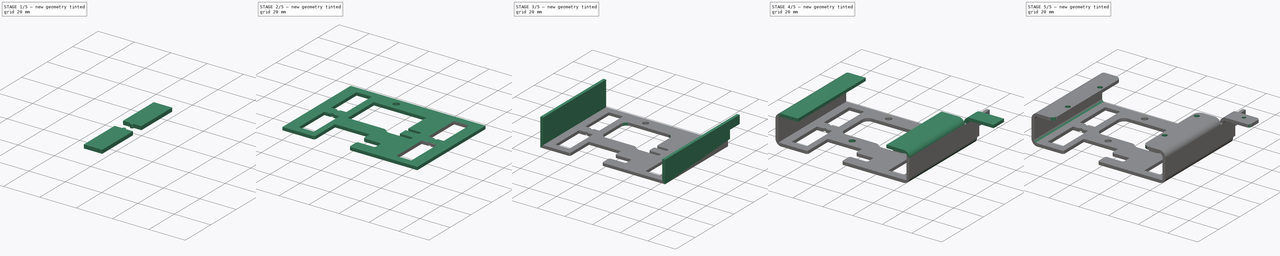
[diagram: build sequence overview — one tinted view per stage of 5, left to right]
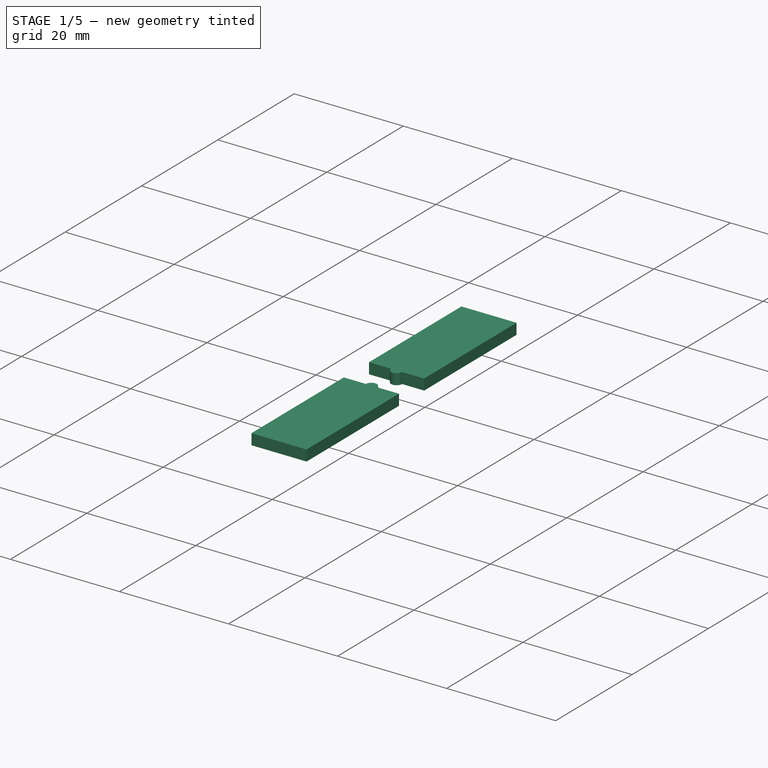
[diagram: stage 1 of 5 — iso view after this stage's code; geometry added in this stage tinted green]
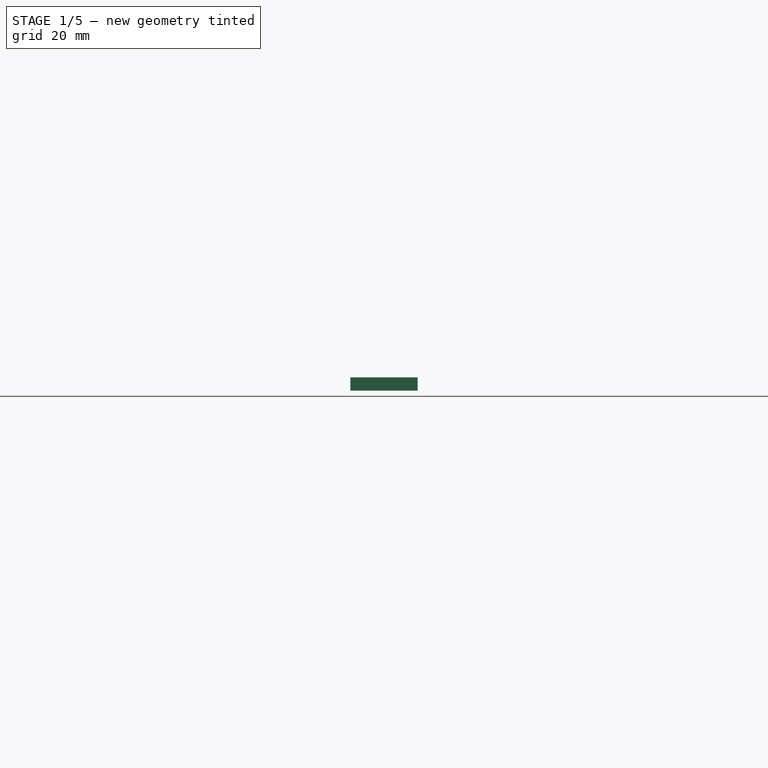
[diagram: stage 1 of 5 — front view after this stage's code; geometry added in this stage tinted green]
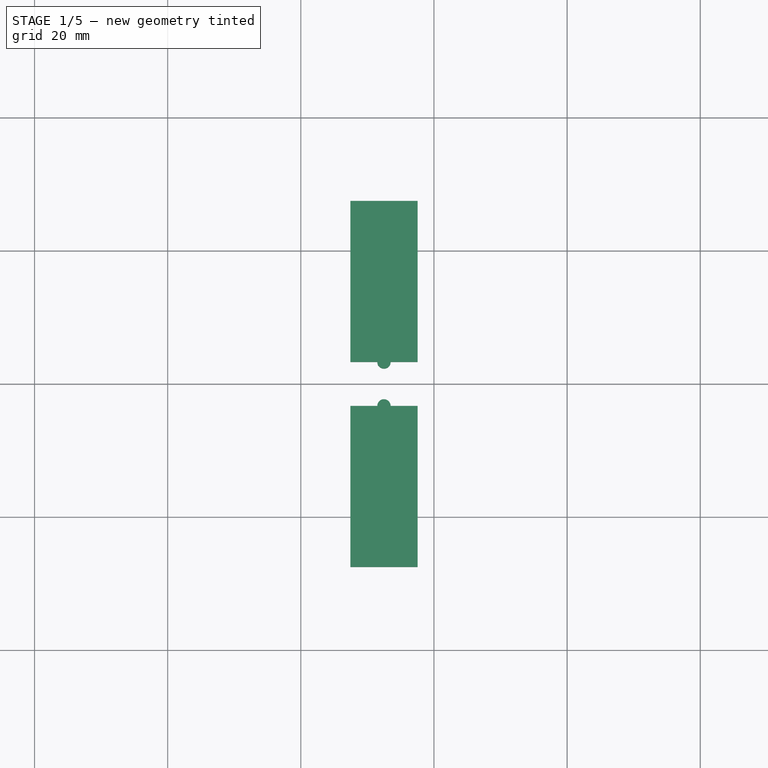
[diagram: stage 1 of 5 — top view after this stage's code; geometry added in this stage tinted green]
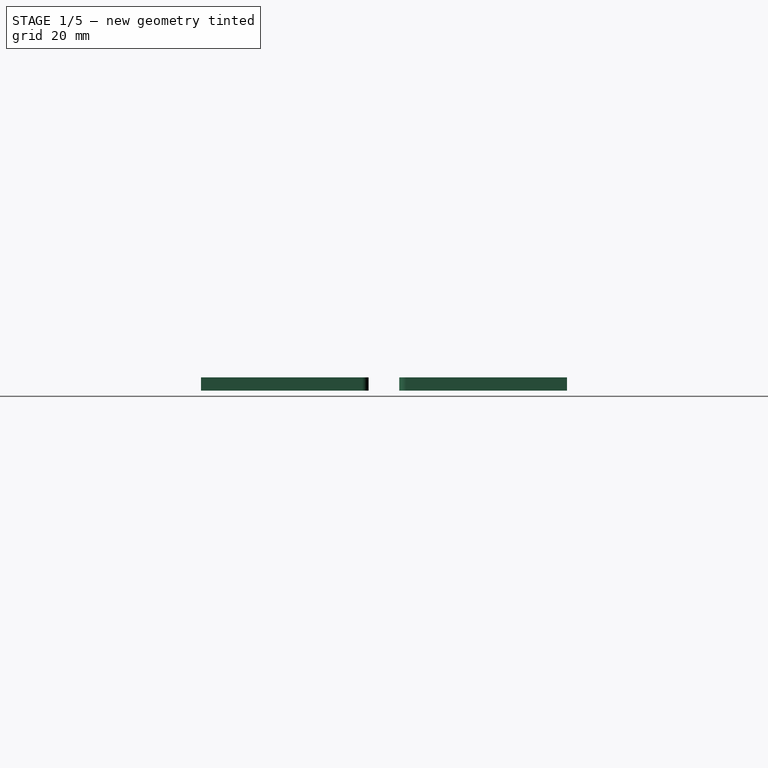
[diagram: stage 1 of 5 — right view after this stage's code; geometry added in this stage tinted green]
FCSTD DOCUMENT  (FreeCAD 0.14R3310 (Git))
Label: 78. PLACA EXTRUDERS
License: CC-BY 3.0
LicenseURL: http://creativecommons.org/licenses/by/3.0/
objects: Sketcher::SketchObject×10, PartDesign::Pad×7, PartDesign::Fillet×7, PartDesign::Pocket×3, Part::Mirroring×2, Part::MultiFuse×2, Part::Cut×1
note: 42 computed .brp shape members not serialized (recipe doc carries the construction recipe); baked Part::Feature solids carry a one-line shape summary decoded from their .brp

FEATURE [Sketcher::SketchObject] Sketch001
  sketch-geometry (7):
    g0: LineSegment StartX=-27.44 StartY=-27.5 StartZ=0 EndX=-37.55 EndY=-27.5 EndZ=0
    g1: LineSegment StartX=-37.55 StartY=-27.5 StartZ=0 EndX=-37.55 EndY=-3.3 EndZ=0
    g2: LineSegment [constr] StartX=-37.55 StartY=-3.3 StartZ=0 EndX=-27.44 EndY=-3.3 EndZ=0
    g3: LineSegment StartX=-27.44 StartY=-3.3 StartZ=0 EndX=-27.44 EndY=-27.5 EndZ=0
    g4: ArcOfCircle CenterX=-32.49 CenterY=-3.3 CenterZ=0 NormalX=0 NormalY=0 NormalZ=1 Radius=1 StartAngle=0 EndAngle=3.14159
    g5: LineSegment StartX=-33.49 StartY=-3.3 StartZ=0 EndX=-37.55 EndY=-3.3 EndZ=0
    g6: LineSegment StartX=-31.49 StartY=-3.3 StartZ=0 EndX=-27.44 EndY=-3.3 EndZ=0
  constraints (21):
    c: Coincident(g0,g1)
    c: Coincident(g1,g2)
    c: Coincident(g2,g3)
    c: Coincident(g3,g0)
    c: Horizontal(g0)
    c: Horizontal(g2)
    c: Vertical(g1)
    c: Vertical(g3)
    c: Distance(g0) = 10.11
    c: Distance(g1) = 24.2
    c: DistanceY(g-1,g2) = -3.3
    c: DistanceX(g-2,g2) = -27.44
    c: PointOnObject(g4,g2)
    c: PointOnObject(g4,g2)
    c: PointOnObject(g4,g2)
    c: Radius(g4) = 1
    c: Coincident(g5,g4)
    c: Coincident(g5,g1)
    c: Distance(g4,g1) = 4.06
    c: Coincident(g6,g4)
    c: Coincident(g6,g2)
FEATURE [PartDesign::Pad] Pad001
  Length = 2
  Length2 = 100
  Sketch = -> Sketch001
  Type = 0
FEATURE [Part::Mirroring] Part__Mirroring  label="Pad001 (Mirror #1)"
  Base = (0,0,0)
  Normal = (0,1,0)
  Source = -> Pad001
FEATURE [Part::MultiFuse] Fusion
  Shapes = -> [Pad001,Part__Mirroring]
FEATURE [Part::Mirroring] Part__Mirroring001  label="Fusion (Mirror #2)"
  Base = (0,0,0)
  Normal = (1,0,0)
  Source = -> Fusion
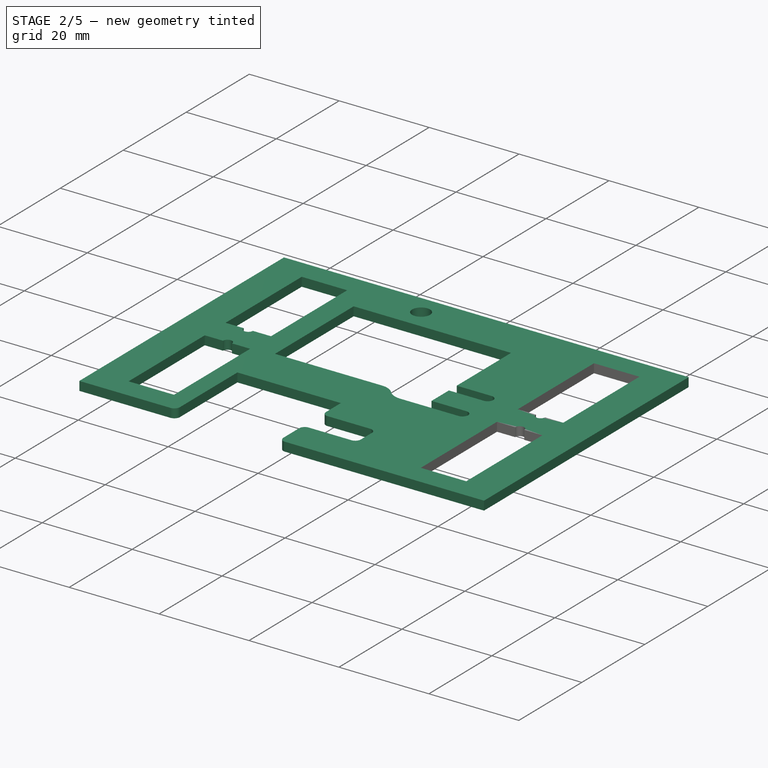
[diagram: stage 2 of 5 — iso view after this stage's code; geometry added in this stage tinted green]
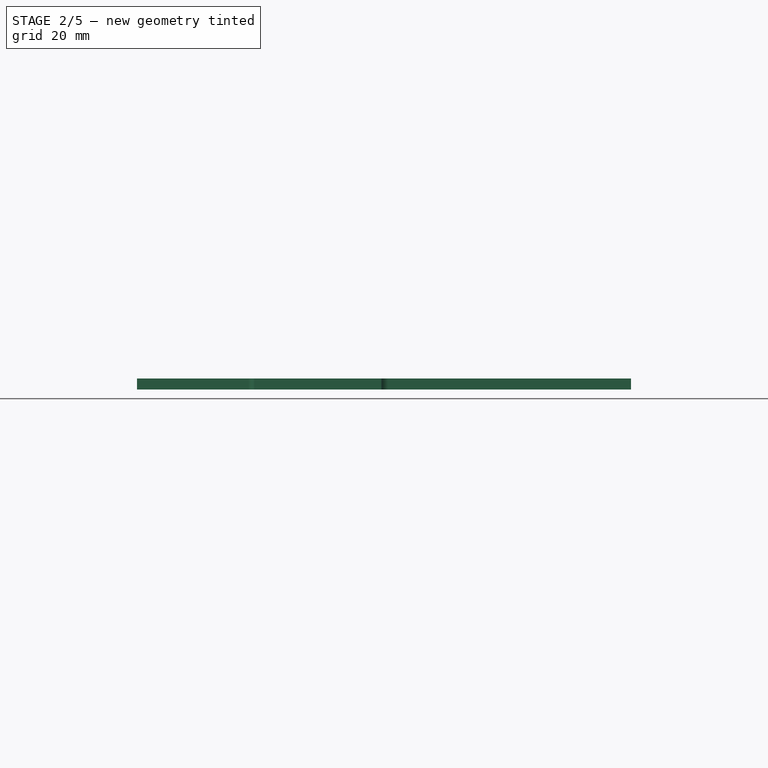
[diagram: stage 2 of 5 — front view after this stage's code; geometry added in this stage tinted green]
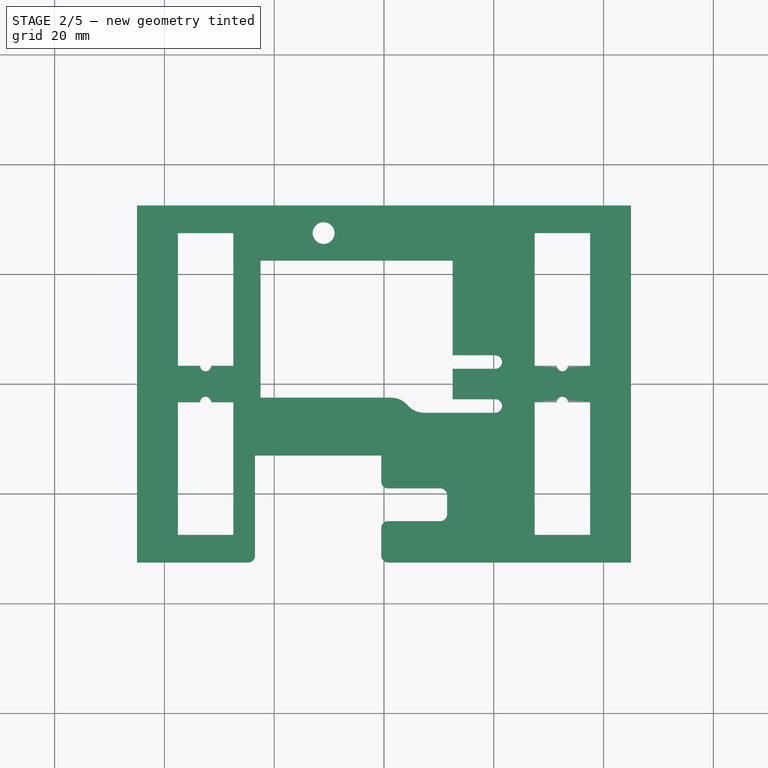
[diagram: stage 2 of 5 — top view after this stage's code; geometry added in this stage tinted green]
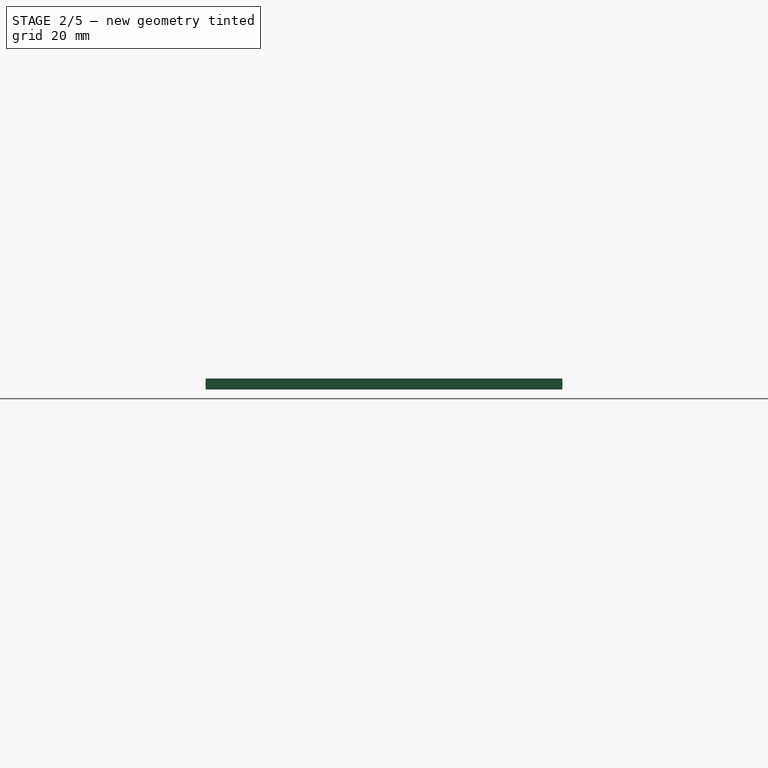
[diagram: stage 2 of 5 — right view after this stage's code; geometry added in this stage tinted green]
FEATURE [Sketcher::SketchObject] Sketch
  sketch-geometry (18):
    g0: LineSegment StartX=-45 StartY=32.5 StartZ=0 EndX=45 EndY=32.5 EndZ=0
    g1: LineSegment StartX=45 StartY=32.5 StartZ=0 EndX=45 EndY=-32.5 EndZ=0
    g2: LineSegment [constr] StartX=45 StartY=-32.5 StartZ=0 EndX=-45 EndY=-32.5 EndZ=0
    g3: LineSegment StartX=-45 StartY=-32.5 StartZ=0 EndX=-45 EndY=32.5 EndZ=0
    g4: LineSegment StartX=-23.5 StartY=-32.5 StartZ=0 EndX=-23.5 EndY=-13 EndZ=0
    g5: LineSegment StartX=-23.5 StartY=-13 StartZ=0 EndX=-0.5 EndY=-13 EndZ=0
    g6: LineSegment StartX=-0.5 StartY=-19 StartZ=0 EndX=11.5 EndY=-19 EndZ=0
    g7: LineSegment StartX=-0.5 StartY=-25 StartZ=0 EndX=11.5 EndY=-25 EndZ=0
    g8: LineSegment StartX=-0.5 StartY=-13 StartZ=0 EndX=-0.5 EndY=-19 EndZ=0
    g9: LineSegment StartX=11.5 StartY=-19 StartZ=0 EndX=11.5 EndY=-25 EndZ=0
    g10: LineSegment StartX=-0.5 StartY=-25 StartZ=0 EndX=-0.5 EndY=-32.5 EndZ=0
    g11: LineSegment StartX=-23.5 StartY=-32.5 StartZ=0 EndX=-45 EndY=-32.5 EndZ=0
    g12: LineSegment StartX=-0.5 StartY=-32.5 StartZ=0 EndX=45 EndY=-32.5 EndZ=0
    g13: Circle CenterX=-11 CenterY=27.5 CenterZ=0 NormalX=0 NormalY=0 NormalZ=1 Radius=2
    g14: LineSegment StartX=-22.5 StartY=22.5 StartZ=0 EndX=12.5 EndY=22.5 EndZ=0
    g15: LineSegment StartX=12.5 StartY=22.5 StartZ=0 EndX=12.5 EndY=-2.5 EndZ=0
    g16: LineSegment StartX=12.5 StartY=-2.5 StartZ=0 EndX=-22.5 EndY=-2.5 EndZ=0
    g17: LineSegment StartX=-22.5 StartY=-2.5 StartZ=0 EndX=-22.5 EndY=22.5 EndZ=0
  constraints (52):
    c: Coincident(g0,g1)
    c: Coincident(g1,g2)
    c: Coincident(g2,g3)
    c: Coincident(g3,g0)
    c: Horizontal(g0)
    c: Horizontal(g2)
    c: Vertical(g1)
    c: Vertical(g3)
    c: Symmetric(g1,g0,g-1)
    c: Distance(g3) = 65
    c: Distance(g0) = 90
    c: PointOnObject(g4,g2)
    c: Vertical(g4)
    c: Distance(g4,g3) = 21.5
    c: Distance(g4) = 19.5
    c: Coincident(g5,g4)
    c: Horizontal(g5)
    c: Distance(g5) = 23
    c: Horizontal(g6)
    c: Horizontal(g7)
    c: Coincident(g8,g5)
    c: Coincident(g8,g6)
    c: Vertical(g8)
    c: Distance(g8) = 6
    c: Distance(g6) = 12
    c: Coincident(g9,g6)
    c: Coincident(g9,g7)
    c: Vertical(g9)
    c: Distance(g9) = 6
    c: Coincident(g10,g7)
    c: PointOnObject(g10,g2)
    c: Vertical(g10)
    c: Distance(g10,g4) = 23
    c: Coincident(g11,g4)
    c: Coincident(g11,g2)
    c: Coincident(g12,g10)
    c: Coincident(g12,g1)
    c: Distance(g13,g0) = 5
    c: Distance(g13,g3) = 34
    c: Radius(g13) = 2
    c: Coincident(g14,g15)
    c: Coincident(g15,g16)
    c: Coincident(g16,g17)
    c: Coincident(g17,g14)
    c: Horizontal(g14)
    c: Horizontal(g16)
    c: Vertical(g15)
    c: Vertical(g17)
    c: Distance(g14) = 35
    c: Distance(g15) = 25
    c: Distance(g14,g0) = 10
    c: Distance(g14,g3) = 22.5
FEATURE [PartDesign::Pad] Pad
  Length = 2
  Length2 = 100
  Sketch = -> Sketch
  Type = 0
FEATURE [Part::MultiFuse] Fusion001
  Shapes = -> [Fusion,Part__Mirroring001]
FEATURE [Part::Cut] Cut
  Base = -> Pad
  Tool = -> Fusion001
FEATURE [Sketcher::SketchObject] Sketch002
  ExternalGeometry = -> [Cut]
  Placement = pos=(0,0,2) rot=(0,0,1;0rad)
  Support = -> Cut [Face5]
  sketch-geometry (10):
    g0: LineSegment StartX=12.5 StartY=5.25 StartZ=0 EndX=20.25 EndY=5.25 EndZ=0
    g1: LineSegment StartX=12.5 StartY=2.75 StartZ=0 EndX=20.25 EndY=2.75 EndZ=0
    g2: LineSegment StartX=12.5 StartY=-2.75 StartZ=0 EndX=20.25 EndY=-2.75 EndZ=0
    g3: ArcOfCircle CenterX=20.25 CenterY=-4 CenterZ=0 NormalX=0 NormalY=0 NormalZ=1 Radius=1.25 StartAngle=4.71239 EndAngle=7.85398
    g4: ArcOfCircle CenterX=20.25 CenterY=4 CenterZ=0 NormalX=0 NormalY=0 NormalZ=1 Radius=1.25 StartAngle=4.71239 EndAngle=7.85398
    g5: LineSegment StartX=12.5 StartY=2.75 StartZ=0 EndX=12.5 EndY=-2.75 EndZ=0
    g6: LineSegment StartX=20.25 StartY=-5.25 StartZ=0 EndX=7.3 EndY=-5.25 EndZ=0
    g7: ArcOfCircle CenterX=7.3 CenterY=-1.25 CenterZ=0 NormalX=0 NormalY=0 NormalZ=1 Radius=4 StartAngle=3.85743 EndAngle=4.71239
    g8: ArcOfCircle CenterX=1.26365 CenterY=-6.5 CenterZ=0 NormalX=0 NormalY=0 NormalZ=1 Radius=4 StartAngle=0.715838 EndAngle=1.5708
    g9: LineSegment StartX=1.26365 StartY=-2.5 StartZ=0 EndX=12.5 EndY=5.25 EndZ=0
  constraints (33):
    c: Horizontal(g0)
    c: Horizontal(g1)
    c: Horizontal(g2)
    c: Coincident(g3,g2)
    c: Coincident(g4,g0)
    c: Coincident(g4,g1)
    c: Tangent(g4,g0)
    c: Tangent(g4,g1)
    c: Tangent(g3,g2)
    c: Symmetric(g4,g3,g-1)
    c: Distance(g4,g3) = 8
    c: Equal(g4,g3)
    c: Radius(g4) = 1.25
    c: PointOnObject(g0,g-3)
    c: Equal(g1,g0)
    c: Equal(g0,g2)
    c: Coincident(g5,g1)
    c: Coincident(g5,g2)
    c: Coincident(g6,g3)
    c: Horizontal(g6)
    c: Distance(g6) = 12.95
    c: Tangent(g3,g6)
    c: Distance(g4,g-3) = 7.75
    c: Coincident(g7,g6)
    c: Tangent(g7,g6)
    c: Radius(g7) = 4
    c: Coincident(g8,g7)
    c: Equal(g8,g7)
    c: PointOnObject(g8,g-4)
    c: Tangent(g8,g-4)
    c: Tangent(g7,g8)
    c: Coincident(g9,g8)
    c: Coincident(g9,g0)
FEATURE [PartDesign::Pocket] Pocket
  Length = 5
  Sketch = -> Sketch002
  Type = 0
FEATURE [PartDesign::Fillet] Fillet
  Base = -> Pocket [Edge1,Edge111,Edge108,Edge113,Edge112,Edge110]
  Radius = 1.25
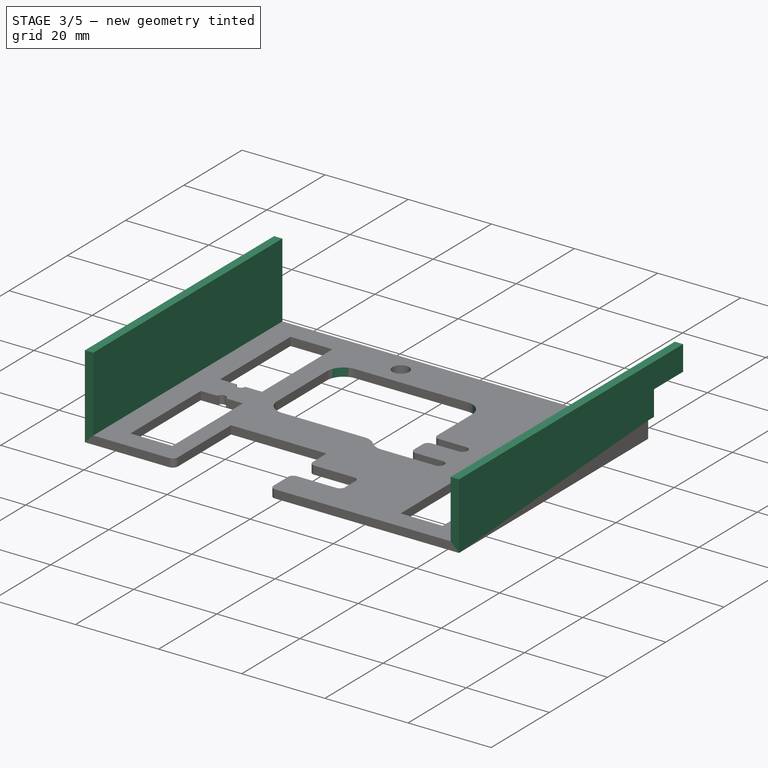
[diagram: stage 3 of 5 — iso view after this stage's code; geometry added in this stage tinted green]
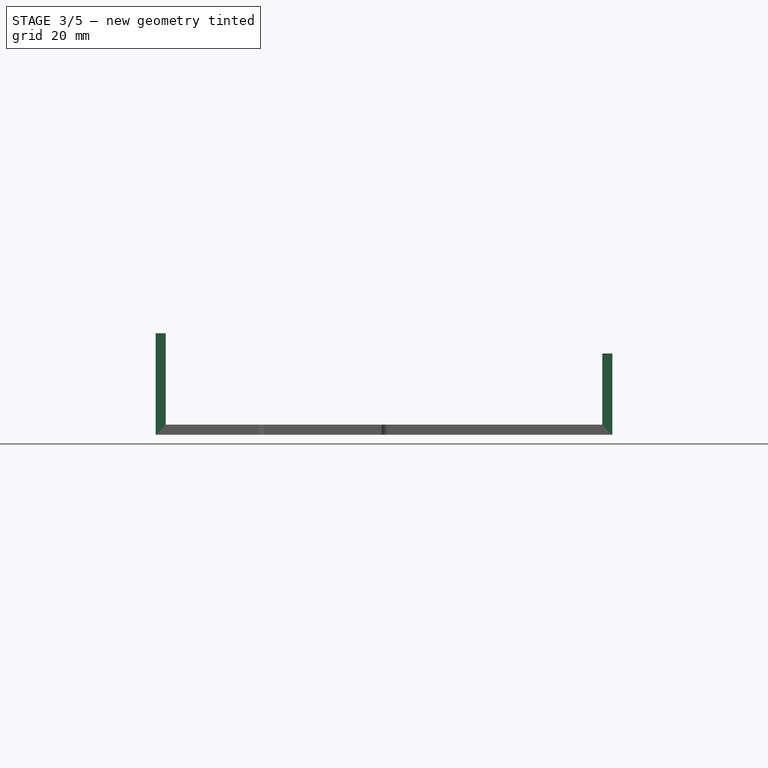
[diagram: stage 3 of 5 — front view after this stage's code; geometry added in this stage tinted green]
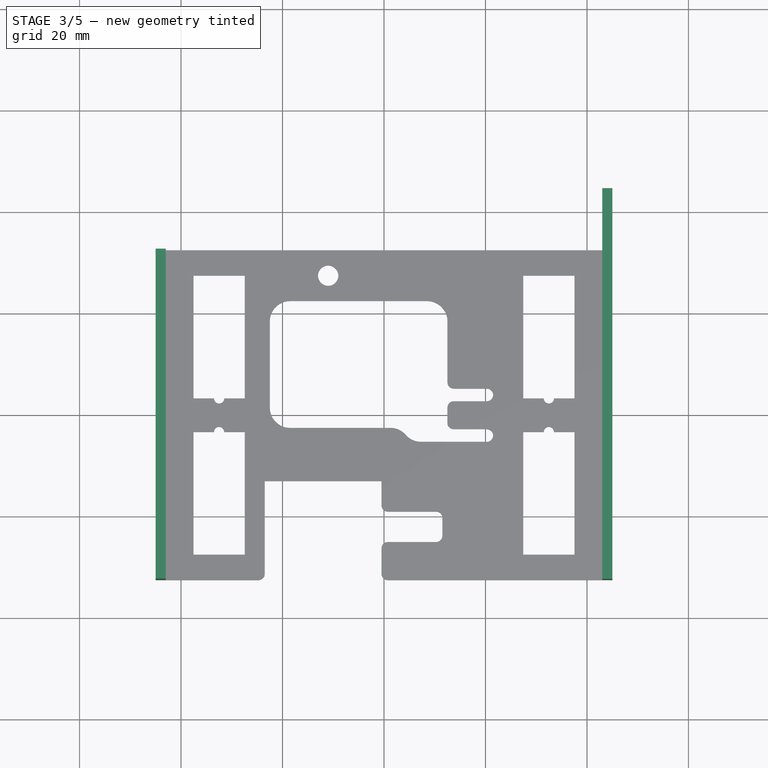
[diagram: stage 3 of 5 — top view after this stage's code; geometry added in this stage tinted green]
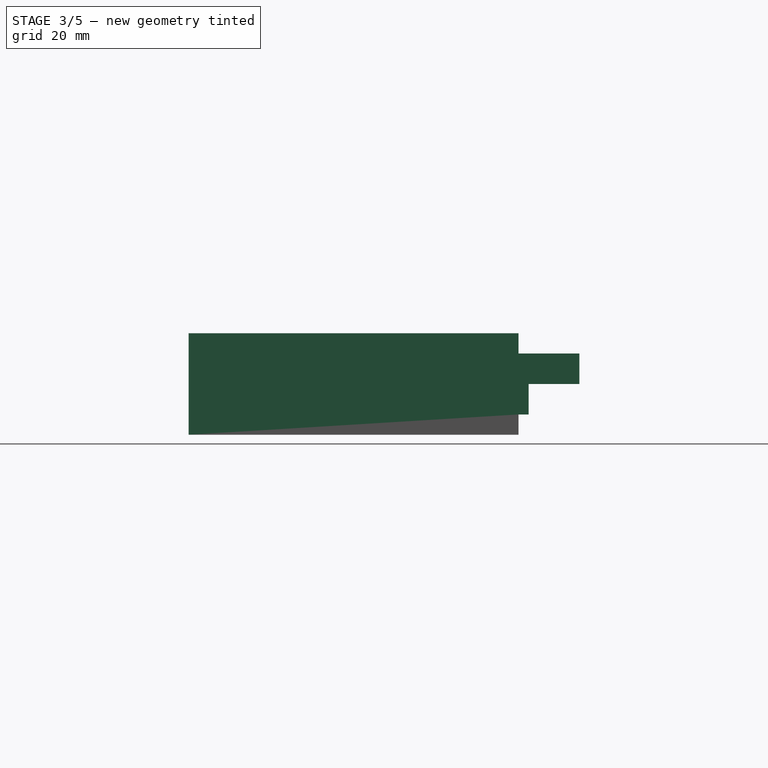
[diagram: stage 3 of 5 — right view after this stage's code; geometry added in this stage tinted green]
FEATURE [PartDesign::Fillet] Fillet001
  Base = -> Fillet [Edge132,Edge133,Edge144]
  Radius = 4
FEATURE [PartDesign::Fillet] Fillet002
  Base = -> Fillet001 [Edge78,Edge91,Edge89]
  Radius = 1.25
FEATURE [Sketcher::SketchObject] Sketch003
  ExternalGeometry = -> [Fillet002]
  Placement = pos=(45,0,0) rot=(0.57735,0.57735,0.57735;2.0944rad)
  Support = -> Fillet002 [Face27]
  sketch-geometry (10):
    g0: LineSegment StartX=-32.5 StartY=0 StartZ=0 EndX=32.5 EndY=0 EndZ=0
    g1: LineSegment [constr] StartX=32.5 StartY=0 StartZ=0 EndX=32.5 EndY=16 EndZ=0
    g2: LineSegment StartX=32.5 StartY=16 StartZ=0 EndX=-32.5 EndY=16 EndZ=0
    g3: LineSegment StartX=-32.5 StartY=16 StartZ=0 EndX=-32.5 EndY=0 EndZ=0
    g4: LineSegment StartX=32.5 StartY=16 StartZ=0 EndX=44.5 EndY=16 EndZ=0
    g5: LineSegment StartX=44.5 StartY=16 StartZ=0 EndX=44.5 EndY=10 EndZ=0
    g6: LineSegment StartX=44.5 StartY=10 StartZ=0 EndX=34.5 EndY=10 EndZ=0
    g7: LineSegment StartX=34.5 StartY=10 StartZ=0 EndX=34.5 EndY=4 EndZ=0
    g8: LineSegment StartX=34.5 StartY=4 StartZ=0 EndX=32.5 EndY=4 EndZ=0
    g9: LineSegment StartX=32.5 StartY=4 StartZ=0 EndX=32.5 EndY=0 EndZ=0
  constraints (28):
    c: Coincident(g0,g1)
    c: Coincident(g1,g2)
    c: Coincident(g2,g3)
    c: Coincident(g3,g0)
    c: Horizontal(g0)
    c: Horizontal(g2)
    c: Vertical(g1)
    c: Vertical(g3)
    c: Coincident(g0,g-4)
    c: Coincident(g0,g-3)
    c: Distance(g3) = 16
    c: Coincident(g4,g1)
    c: Horizontal(g4)
    c: Distance(g4) = 12
    c: Coincident(g5,g4)
    c: Vertical(g5)
    c: Distance(g5) = 6
    c: Coincident(g6,g5)
    c: Horizontal(g6)
    c: Distance(g6) = 10
    c: Coincident(g7,g6)
    c: Vertical(g7)
    c: Distance(g7) = 6
    c: PointOnObject(g8,g1)
    c: Horizontal(g8)
    c: Coincident(g8,g7)
    c: Coincident(g9,g8)
    c: Coincident(g9,g0)
FEATURE [PartDesign::Pad] Pad002
  Length = 2
  Length2 = 100
  Reversed = true
  Sketch = -> Sketch003
  Type = 0
FEATURE [Sketcher::SketchObject] Sketch004
  ExternalGeometry = -> [Pad002]
  Placement = pos=(-45,0,0) rot=(0.57735,-0.57735,-0.57735;2.0944rad)
  Support = -> Pad002 [Face9]
  sketch-geometry (4):
    g0: LineSegment StartX=-32.5 StartY=0 StartZ=0 EndX=32.5 EndY=0 EndZ=0
    g1: LineSegment StartX=32.5 StartY=0 StartZ=0 EndX=32.5 EndY=20 EndZ=0
    g2: LineSegment StartX=32.5 StartY=20 StartZ=0 EndX=-32.5 EndY=20 EndZ=0
    g3: LineSegment StartX=-32.5 StartY=20 StartZ=0 EndX=-32.5 EndY=0 EndZ=0
  constraints (11):
    c: Coincident(g0,g1)
    c: Coincident(g1,g2)
    c: Coincident(g2,g3)
    c: Coincident(g3,g0)
    c: Horizontal(g0)
    c: Horizontal(g2)
    c: Vertical(g1)
    c: Vertical(g3)
    c: Coincident(g0,g-4)
    c: Coincident(g0,g-3)
    c: Distance(g3) = 20
FEATURE [PartDesign::Pad] Pad003
  Length = 2
  Length2 = 100
  Reversed = true
  Sketch = -> Sketch004
  Type = 0
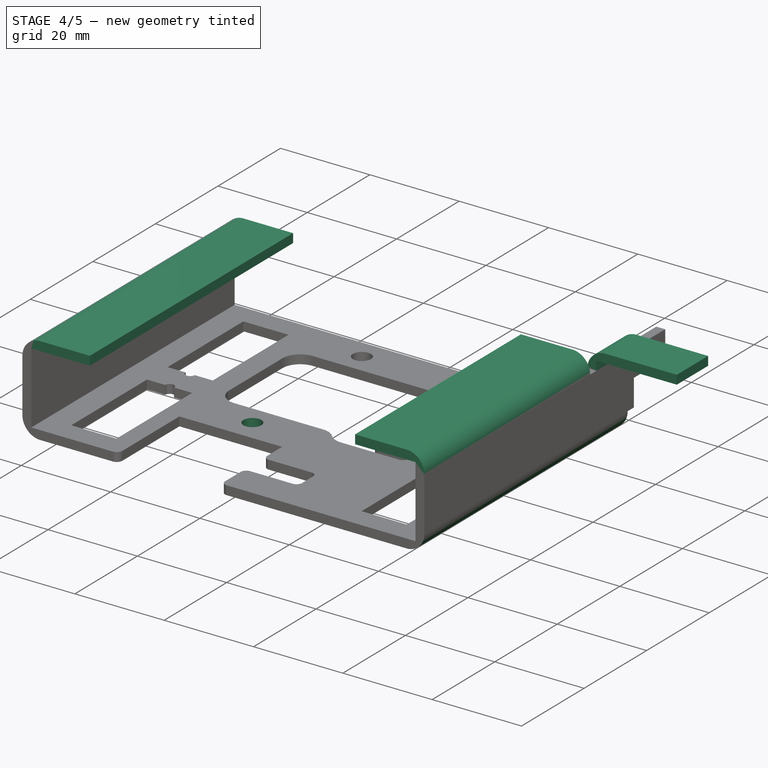
[diagram: stage 4 of 5 — iso view after this stage's code; geometry added in this stage tinted green]
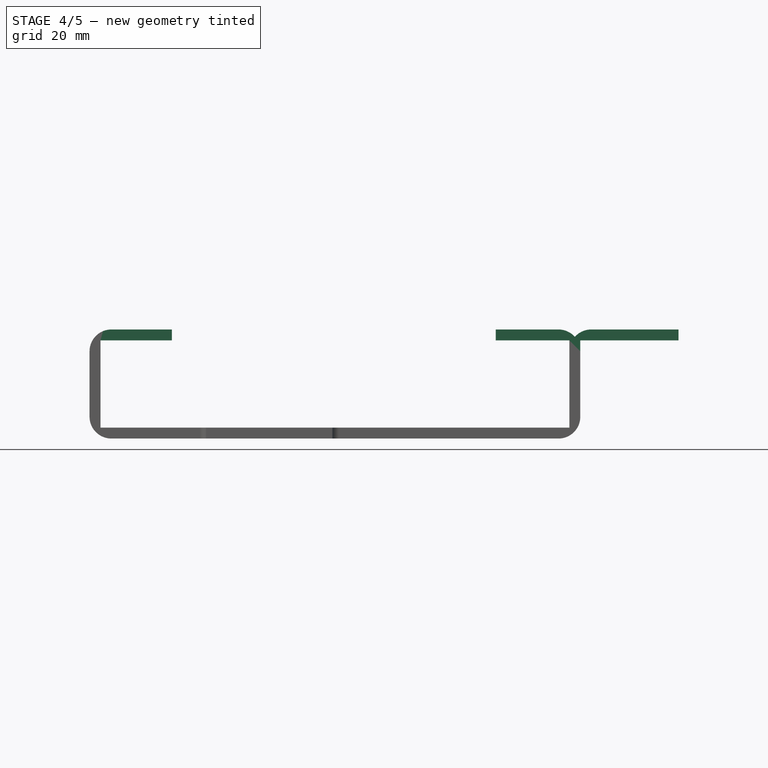
[diagram: stage 4 of 5 — front view after this stage's code; geometry added in this stage tinted green]
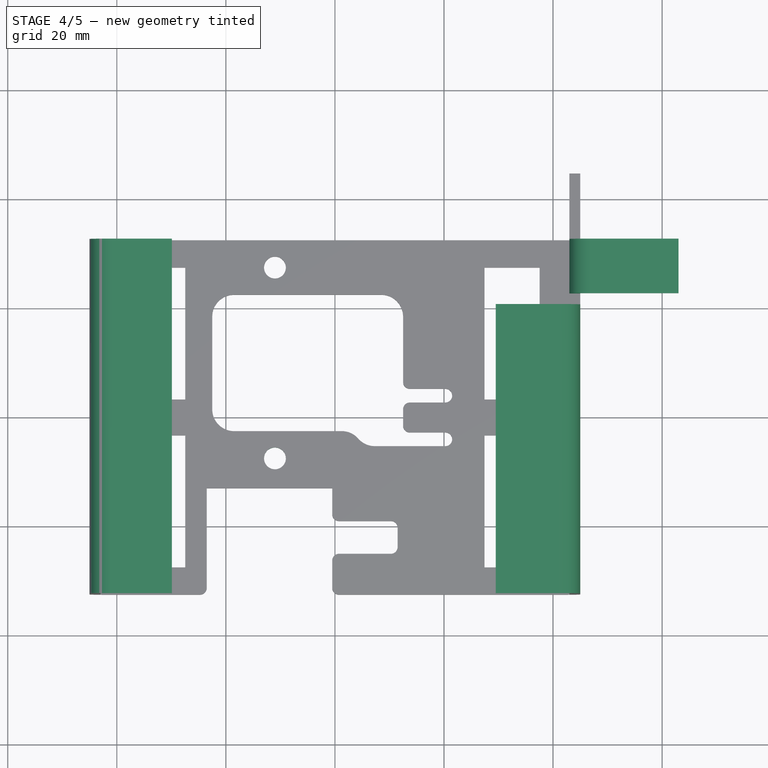
[diagram: stage 4 of 5 — top view after this stage's code; geometry added in this stage tinted green]
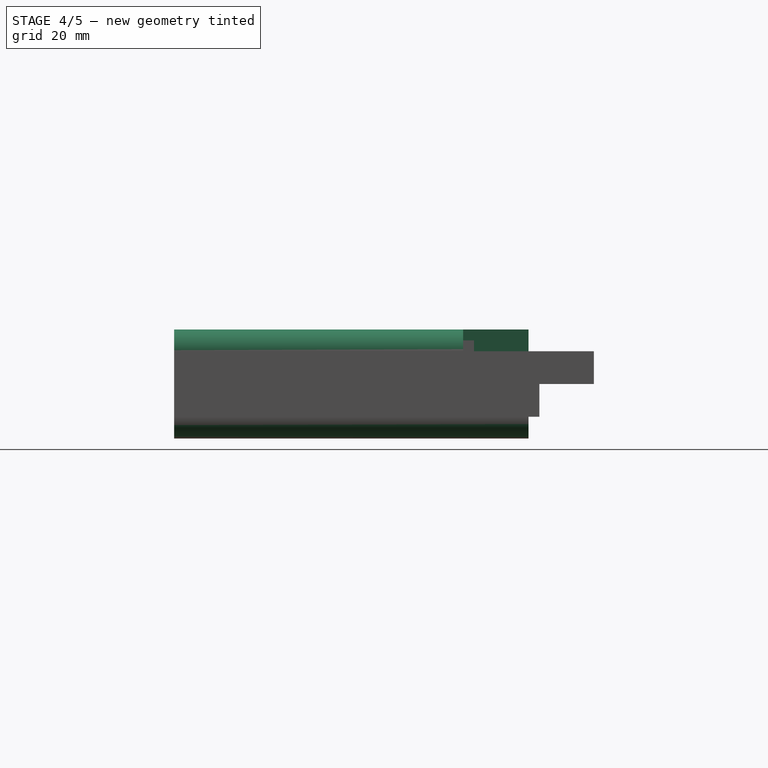
[diagram: stage 4 of 5 — right view after this stage's code; geometry added in this stage tinted green]
FEATURE [Sketcher::SketchObject] Sketch005
  ExternalGeometry = -> [Pad003]
  Placement = pos=(0,0,20) rot=(0,0,1;0rad)
  Support = -> Pad003 [Face68]
  sketch-geometry (4):
    g0: LineSegment StartX=-45 StartY=-32.5 StartZ=0 EndX=-29.9 EndY=-32.5 EndZ=0
    g1: LineSegment StartX=-29.9 StartY=-32.5 StartZ=0 EndX=-29.9 EndY=32.5 EndZ=0
    g2: LineSegment StartX=-29.9 StartY=32.5 StartZ=0 EndX=-45 EndY=32.5 EndZ=0
    g3: LineSegment StartX=-45 StartY=32.5 StartZ=0 EndX=-45 EndY=-32.5 EndZ=0
  constraints (11):
    c: Coincident(g0,g1)
    c: Coincident(g1,g2)
    c: Coincident(g2,g3)
    c: Coincident(g3,g0)
    c: Horizontal(g0)
    c: Horizontal(g2)
    c: Vertical(g1)
    c: Vertical(g3)
    c: Coincident(g0,g-4)
    c: Coincident(g2,g-3)
    c: Distance(g2) = 15.1
FEATURE [PartDesign::Pad] Pad004
  Length = 2
  Length2 = 100
  Reversed = true
  Sketch = -> Sketch005
  Type = 0
FEATURE [Sketcher::SketchObject] Sketch006
  ExternalGeometry = -> [Pad004]
  Placement = pos=(45,0,0) rot=(0.57735,0.57735,0.57735;2.0944rad)
  Support = -> Pad004 [Face3]
  sketch-geometry (8):
    g0: LineSegment StartX=-32.5 StartY=16 StartZ=0 EndX=20.5 EndY=16 EndZ=0
    g1: LineSegment StartX=20.5 StartY=16 StartZ=0 EndX=20.5 EndY=20 EndZ=0
    g2: LineSegment StartX=20.5 StartY=20 StartZ=0 EndX=-32.5 EndY=20 EndZ=0
    g3: LineSegment StartX=-32.5 StartY=20 StartZ=0 EndX=-32.5 EndY=16 EndZ=0
    g4: LineSegment StartX=22.5 StartY=16 StartZ=0 EndX=32.5 EndY=16 EndZ=0
    g5: LineSegment StartX=32.5 StartY=16 StartZ=0 EndX=32.5 EndY=20 EndZ=0
    g6: LineSegment StartX=32.5 StartY=20 StartZ=0 EndX=22.5 EndY=20 EndZ=0
    g7: LineSegment StartX=22.5 StartY=20 StartZ=0 EndX=22.5 EndY=16 EndZ=0
  constraints (23):
    c: Coincident(g0,g1)
    c: Coincident(g1,g2)
    c: Coincident(g2,g3)
    c: Coincident(g3,g0)
    c: Horizontal(g0)
    c: Horizontal(g2)
    c: Vertical(g1)
    c: Vertical(g3)
    c: Coincident(g0,g-3)
    c: Distance(g2) = 53
    c: PointOnObject(g2,g-4)
    c: Coincident(g4,g5)
    c: Coincident(g5,g6)
    c: Coincident(g6,g7)
    c: Coincident(g7,g4)
    c: Horizontal(g4)
    c: Horizontal(g6)
    c: Vertical(g5)
    c: Vertical(g7)
    c: PointOnObject(g4,g-3)
    c: PointOnObject(g5,g-4)
    c: Distance(g6,g1) = 2
    c: Distance(g6) = 10
FEATURE [PartDesign::Pad] Pad005
  Length = 2
  Length2 = 100
  Reversed = true
  Sketch = -> Sketch006
  Type = 0
FEATURE [Sketcher::SketchObject] Sketch007
  ExternalGeometry = -> [Pad005]
  Placement = pos=(0,0,20) rot=(0,0,1;0rad)
  Support = -> Pad005 [Face76]
  sketch-geometry (8):
    g0: LineSegment StartX=45 StartY=20.5 StartZ=0 EndX=29.5 EndY=20.5 EndZ=0
    g1: LineSegment StartX=29.5 StartY=20.5 StartZ=0 EndX=29.5 EndY=-32.5 EndZ=0
    g2: LineSegment StartX=29.5 StartY=-32.5 StartZ=0 EndX=45 EndY=-32.5 EndZ=0
    g3: LineSegment StartX=45 StartY=-32.5 StartZ=0 EndX=45 EndY=20.5 EndZ=0
    g4: LineSegment StartX=43 StartY=32.5 StartZ=0 EndX=63 EndY=32.5 EndZ=0
    g5: LineSegment StartX=63 StartY=32.5 StartZ=0 EndX=63 EndY=22.5 EndZ=0
    g6: LineSegment StartX=63 StartY=22.5 StartZ=0 EndX=43 EndY=22.5 EndZ=0
    g7: LineSegment StartX=43 StartY=22.5 StartZ=0 EndX=43 EndY=32.5 EndZ=0
  constraints (22):
    c: Coincident(g0,g1)
    c: Coincident(g1,g2)
    c: Coincident(g2,g3)
    c: Coincident(g3,g0)
    c: Horizontal(g0)
    c: Horizontal(g2)
    c: Vertical(g1)
    c: Vertical(g3)
    c: Coincident(g0,g-4)
    c: Coincident(g2,g-4)
    c: Coincident(g4,g5)
    c: Coincident(g5,g6)
    c: Coincident(g6,g7)
    c: Coincident(g7,g4)
    c: Horizontal(g4)
    c: Horizontal(g6)
    c: Vertical(g5)
    c: Vertical(g7)
    c: Coincident(g4,g-3)
    c: Coincident(g6,g-3)
    c: Distance(g4) = 20
    c: Distance(g0) = 15.5
FEATURE [PartDesign::Pad] Pad006
  Length = 2
  Length2 = 100
  Reversed = true
  Sketch = -> Sketch007
  Type = 0
FEATURE [Sketcher::SketchObject] Sketch008
  ExternalGeometry = -> [Pad006]
  Placement = pos=(0,0,0) rot=(1,0,0;3.14159rad)
  Support = -> Pad006 [Face8]
  sketch-geometry (2):
    g0: Circle CenterX=-11 CenterY=7.5 CenterZ=0 NormalX=0 NormalY=0 NormalZ=1 Radius=2
    g1: LineSegment [constr] StartX=-11 StartY=-27.5 StartZ=0 EndX=-11 EndY=7.5 EndZ=0
  constraints (6):
    c: Equal(g0,g-3)
    c: Coincident(g1,g-3)
    c: PointOnObject(g0,g1)
    c: Vertical(g1)
    c: Coincident(g1,g0)
    c: Distance(g1) = 35
FEATURE [PartDesign::Pocket] Pocket001
  Length = 5
  Sketch = -> Sketch008
  Type = 0
FEATURE [PartDesign::Fillet] Fillet003
  Base = -> Pocket001 [Edge33,Edge21,Edge24,Edge126,Edge184]
  Radius = 4
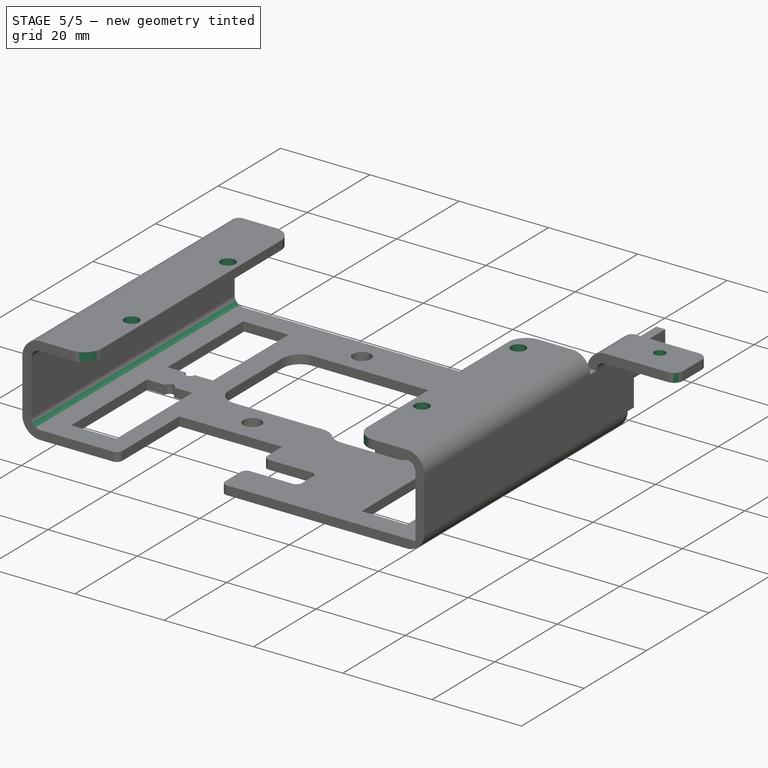
[diagram: stage 5 of 5 — iso view after this stage's code; geometry added in this stage tinted green]
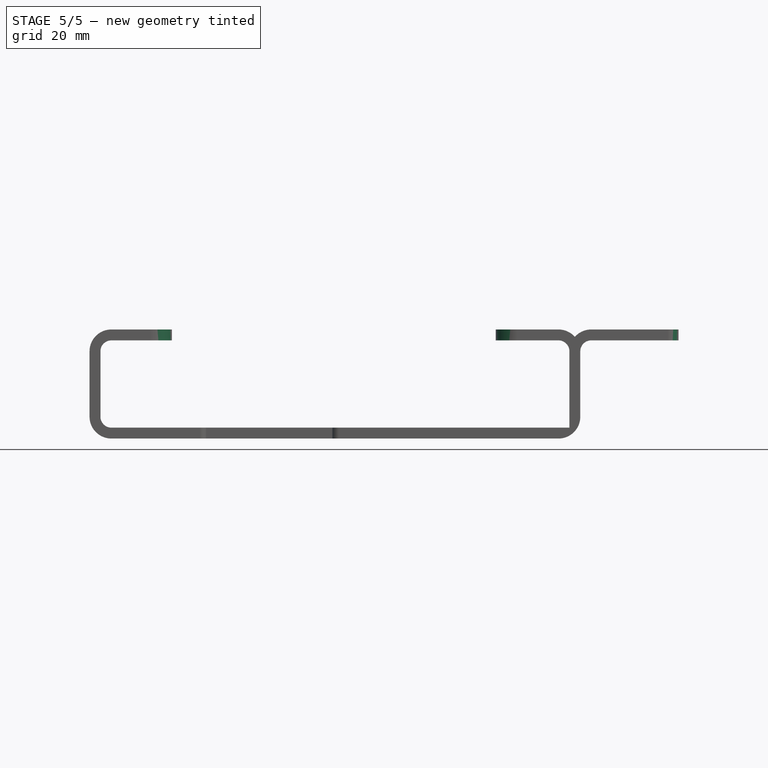
[diagram: stage 5 of 5 — front view after this stage's code; geometry added in this stage tinted green]
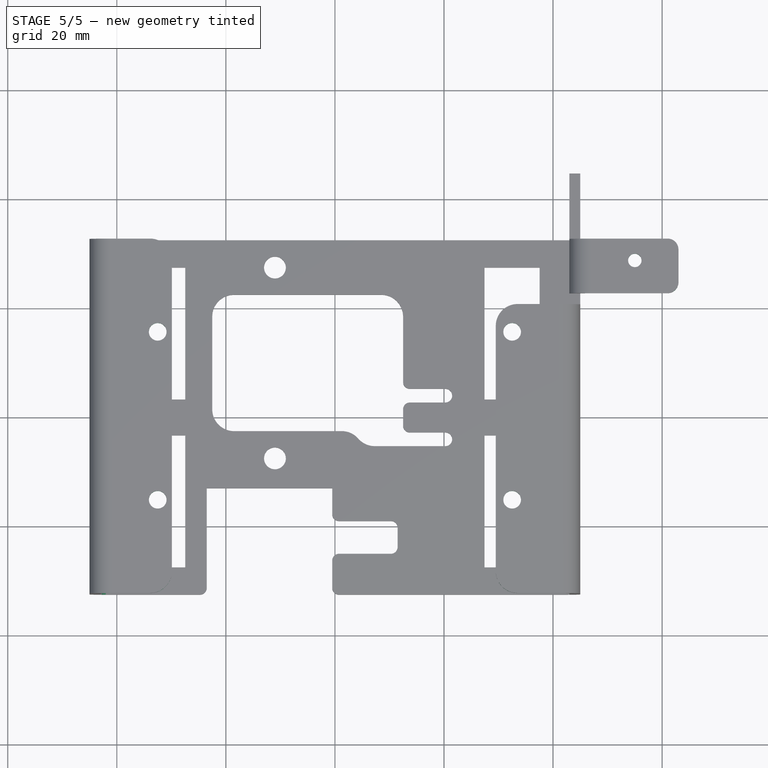
[diagram: stage 5 of 5 — top view after this stage's code; geometry added in this stage tinted green]
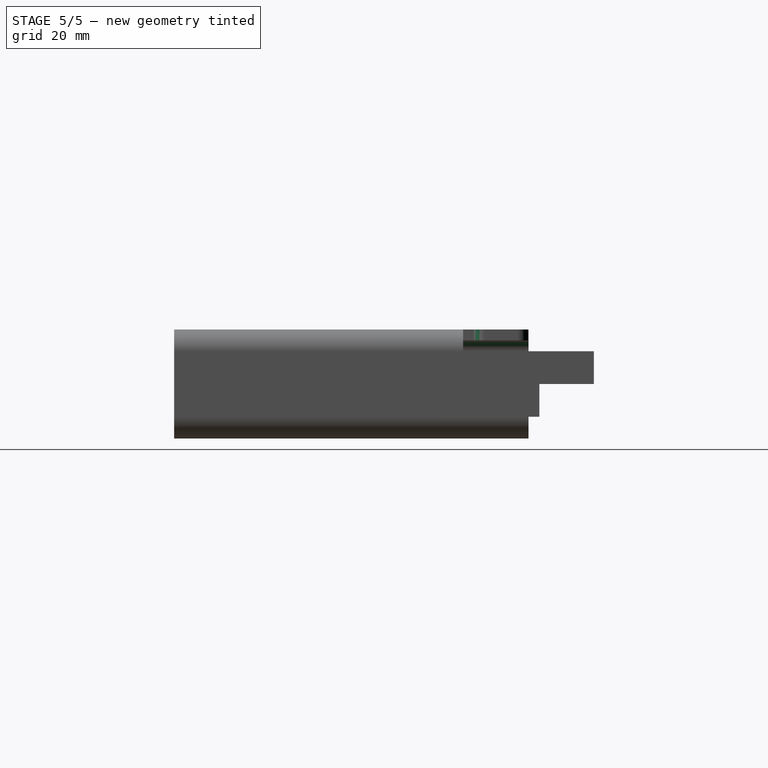
[diagram: stage 5 of 5 — right view after this stage's code; geometry added in this stage tinted green]
FEATURE [PartDesign::Fillet] Fillet004
  Base = -> Fillet003 [Edge200,Edge62,Edge32,Edge18]
  Radius = 2
FEATURE [PartDesign::Fillet] Fillet005
  Base = -> Fillet004 [Edge3,Edge12]
  Radius = 2
FEATURE [PartDesign::Fillet] Fillet006
  Base = -> Fillet005 [Edge137,Edge128,Edge53,Edge209]
  Radius = 4
FEATURE [Sketcher::SketchObject] Sketch009
  ExternalGeometry = -> [Fillet006]
  Placement = pos=(0,0,20) rot=(0,0,1;0rad)
  Support = -> Fillet006 [Face93]
  sketch-geometry (5):
    g0: Circle CenterX=55 CenterY=28.5 CenterZ=0 NormalX=0 NormalY=0 NormalZ=1 Radius=1.23
    g1: Circle CenterX=32.5 CenterY=15.4 CenterZ=0 NormalX=0 NormalY=0 NormalZ=1 Radius=1.62
    g2: Circle CenterX=-32.5 CenterY=15.4 CenterZ=0 NormalX=0 NormalY=0 NormalZ=1 Radius=1.62
    g3: Circle CenterX=-32.5 CenterY=-15.4 CenterZ=0 NormalX=0 NormalY=0 NormalZ=1 Radius=1.62
    g4: Circle CenterX=32.5 CenterY=-15.4 CenterZ=0 NormalX=0 NormalY=0 NormalZ=1 Radius=1.62
  constraints (12):
    c: Radius(g0) = 1.23
    c: Distance(g0,g-3) = 4
    c: Distance(g0,g-4) = 8
    c: Equal(g4,g1)
    c: Equal(g1,g2)
    c: Equal(g2,g3)
    c: Radius(g2) = 1.62
    c: Symmetric(g1,g2,g-2)
    c: Symmetric(g1,g4,g-1)
    c: Symmetric(g2,g3,g-1)
    c: Distance(g1,g2) = 65
    c: Distance(g1,g4) = 30.8
FEATURE [PartDesign::Pocket] Pocket002
  Length = 5
  Sketch = -> Sketch009
  Type = 0
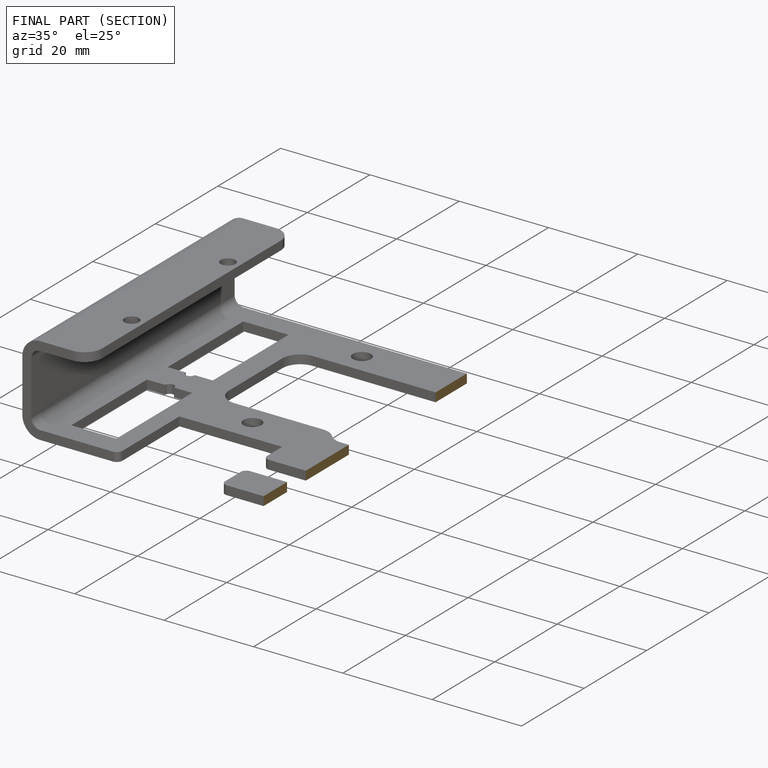
[diagram: finished part — half-section view (interior)]
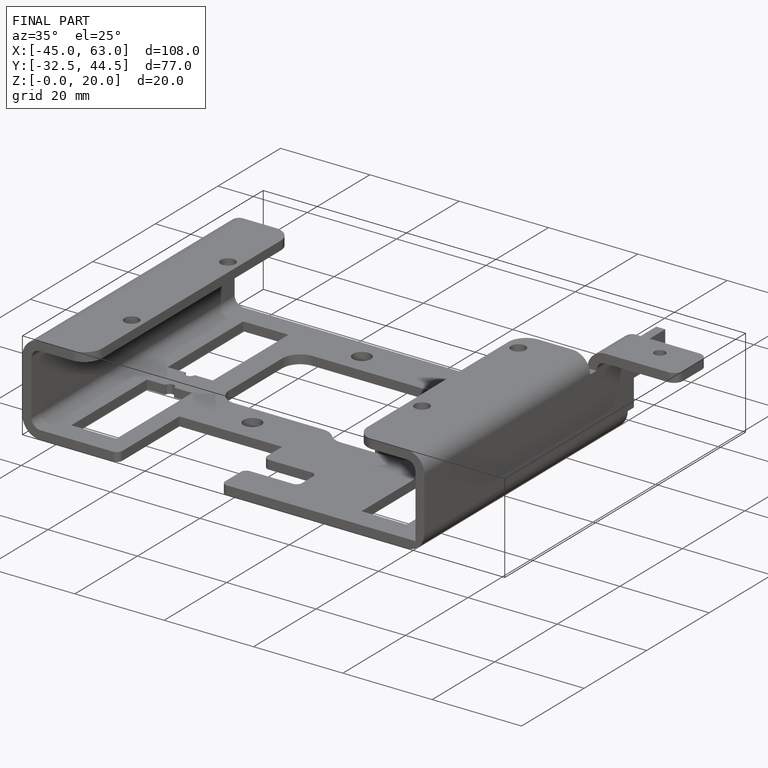
[diagram: finished part — iso view with bounding-box wireframe]
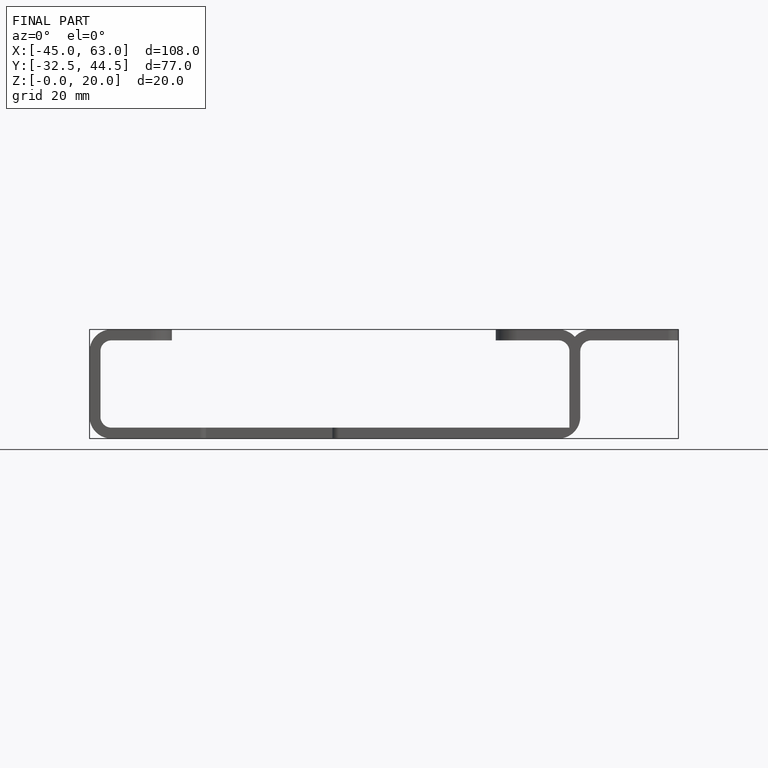
[diagram: finished part — front view with bounding-box wireframe]
